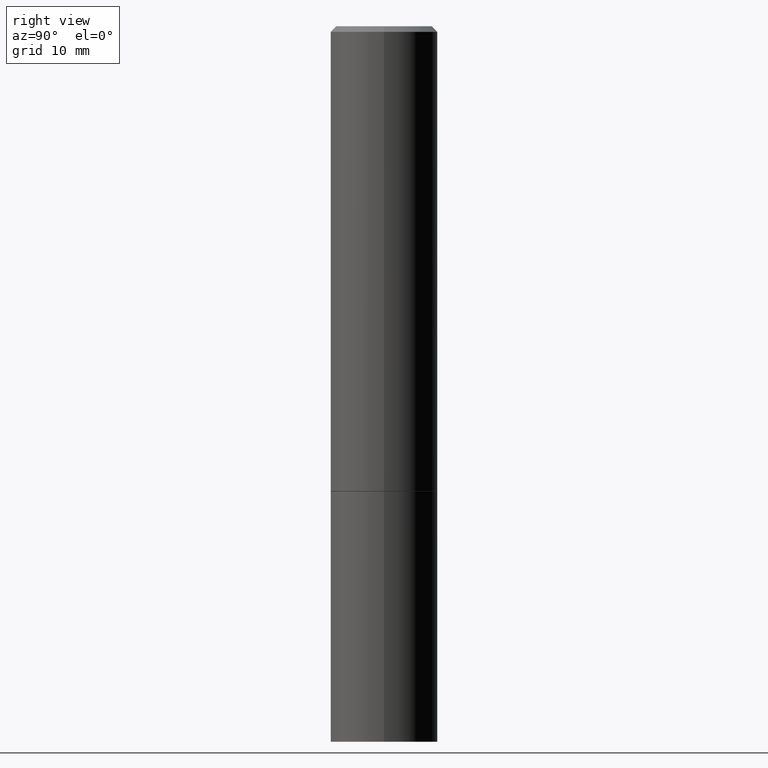
[diagram: clean part render]
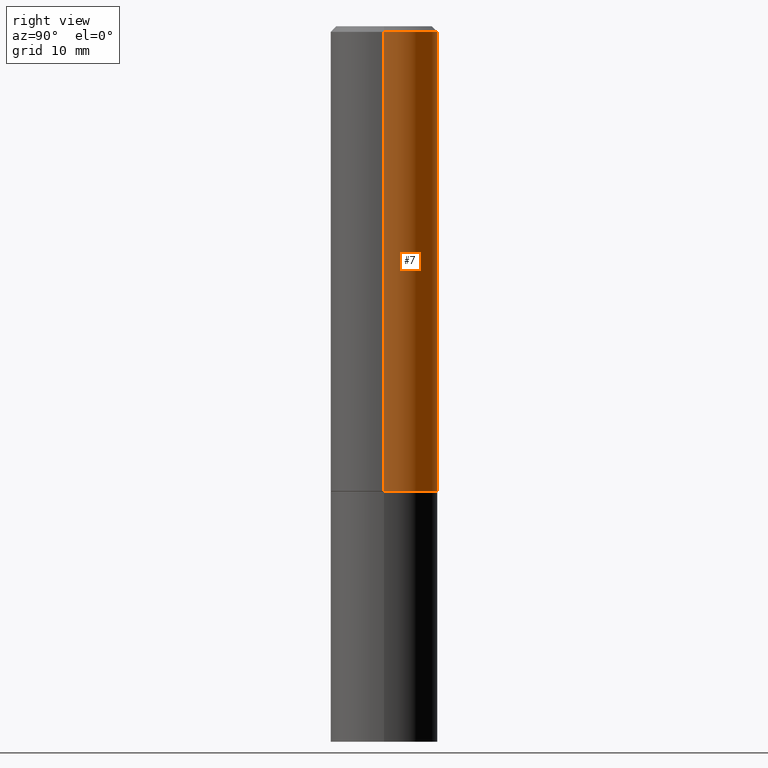
[diagram: same view with one face highlighted and labeled with its STEP entity id]
A machine part, right view. The second image highlights one B-rep face of the part: STEP entity #7.
In plain terms, the highlighted cylindrical surface (partial cylindrical patch) has radius 4.7625 mm, axis along (-0, 0, 1).
Its self-contained STEP definition (entity closure, byte-faithful):
#7 = ADVANCED_FACE ( 'NONE', ( #213 ), #359, .T. ) ;
#14 = EDGE_LOOP ( 'NONE', ( #125, #347, #124, #352 ) ) ;
#23 = VERTEX_POINT ( 'NONE', #72 ) ;
#24 = VERTEX_POINT ( 'NONE', #109 ) ;
#44 = CARTESIAN_POINT ( 'NONE',  ( 4.890937612370283668E-31, -6.982962677686305168E-17, -0.02000000000000004205 ) ) ;
#51 = AXIS2_PLACEMENT_3D ( 'NONE', #44, #271, #105 ) ;
#59 = VERTEX_POINT ( 'NONE', #207 ) ;
#72 = CARTESIAN_POINT ( 'NONE',  ( -0.1874999999999999722, -1.537730030978877023E-15, -1.624000000000000110 ) ) ;
#83 = DIRECTION ( 'NONE',  ( 1.000000000000000000, -6.982962677686266711E-15, 0.000000000000000000 ) ) ;
#89 = CIRCLE ( 'NONE', #51, 0.1874999999999997780 ) ;
#102 = DIRECTION ( 'NONE',  ( -2.445468806185136877E-29, 3.491481338843145188E-15, 1.000000000000000000 ) ) ;
#105 = DIRECTION ( 'NONE',  ( 1.000000000000000000, -6.982962677686265133E-15, 0.000000000000000000 ) ) ;
#109 = CARTESIAN_POINT ( 'NONE',  ( -0.1874999999999997780, 1.239475875289310330E-15, -0.02000000000000004205 ) ) ;
#118 = LINE ( 'NONE', #170, #131 ) ;
#124 = ORIENTED_EDGE ( 'NONE', *, *, #307, .F. ) ;
#125 = ORIENTED_EDGE ( 'NONE', *, *, #136, .T. ) ;
#131 = VECTOR ( 'NONE', #291, 39.37007874015748143 ) ;
#132 = CARTESIAN_POINT ( 'NONE',  ( 0.000000000000000000, 0.000000000000000000, 0.000000000000000000 ) ) ;
#136 = EDGE_CURVE ( 'NONE', #59, #23, #186, .T. ) ;
#152 = DIRECTION ( 'NONE',  ( 1.000000000000000000, -6.982962677686265922E-15, 4.876176775795935793E-29 ) ) ;
#163 = AXIS2_PLACEMENT_3D ( 'NONE', #340, #189, #83 ) ;
#170 = CARTESIAN_POINT ( 'NONE',  ( 0.1874999999999999167, -1.309305502066174219E-15, 9.142831454617375408E-30 ) ) ;
#186 = CIRCLE ( 'NONE', #163, 0.1875000000000000278 ) ;
#189 = DIRECTION ( 'NONE',  ( -2.445468806185136597E-29, 3.491481338843145583E-15, 1.000000000000000000 ) ) ;
#207 = CARTESIAN_POINT ( 'NONE',  ( 0.1875000000000000278, -6.979471196347444214E-15, -1.624000000000000110 ) ) ;
#208 = LINE ( 'NONE', #329, #321 ) ;
#213 = FACE_OUTER_BOUND ( 'NONE', #14, .T. ) ;
#223 = AXIS2_PLACEMENT_3D ( 'NONE', #132, #298, #152 ) ;
#270 = EDGE_CURVE ( 'NONE', #59, #317, #118, .T. ) ;
#271 = DIRECTION ( 'NONE',  ( -2.445468806185136597E-29, 3.491481338843145583E-15, 1.000000000000000000 ) ) ;
#274 = CARTESIAN_POINT ( 'NONE',  ( 0.1874999999999997780, -1.356173001359023691E-15, -0.02000000000000004205 ) ) ;
#291 = DIRECTION ( 'NONE',  ( -2.445468806185136877E-29, 3.491481338843145188E-15, 1.000000000000000000 ) ) ;
#298 = DIRECTION ( 'NONE',  ( -2.445468806185136597E-29, 3.491481338843145583E-15, 1.000000000000000000 ) ) ;
#307 = EDGE_CURVE ( 'NONE', #317, #24, #89, .T. ) ;
#317 = VERTEX_POINT ( 'NONE', #274 ) ;
#321 = VECTOR ( 'NONE', #102, 39.37007874015748143 ) ;
#329 = CARTESIAN_POINT ( 'NONE',  ( -0.1874999999999999167, 1.332267629550187257E-15, -9.223003294227943787E-30 ) ) ;
#333 = EDGE_CURVE ( 'NONE', #23, #24, #208, .T. ) ;
#340 = CARTESIAN_POINT ( 'NONE',  ( 3.971441341244662488E-29, -5.670165694281269206E-15, -1.624000000000000110 ) ) ;
#347 = ORIENTED_EDGE ( 'NONE', *, *, #333, .T. ) ;
#352 = ORIENTED_EDGE ( 'NONE', *, *, #270, .F. ) ;
#359 = CYLINDRICAL_SURFACE ( 'NONE', #223, 0.1874999999999999167 ) ;